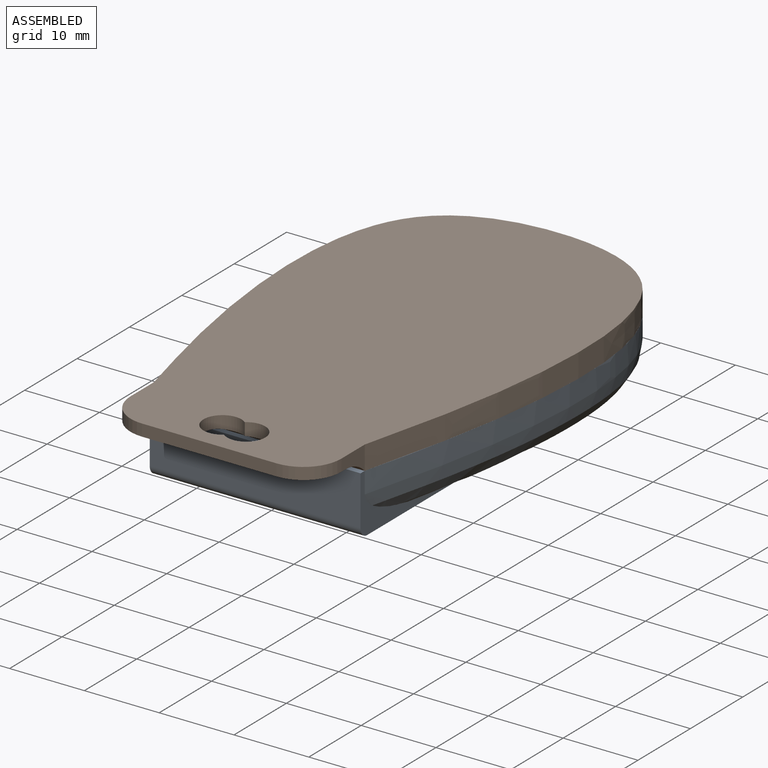
[diagram: assembled view]
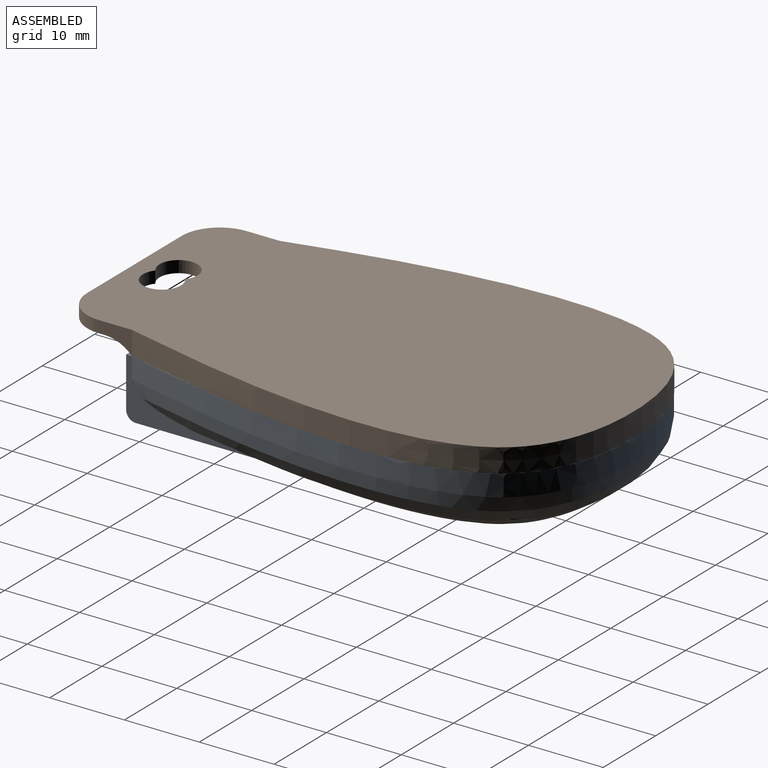
[diagram: assembled view, second angle]
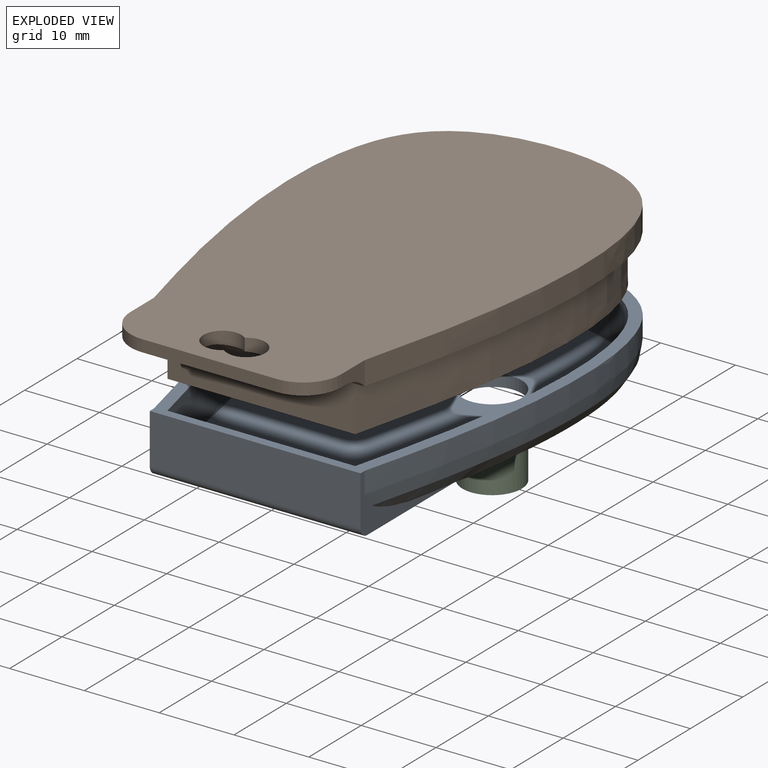
[diagram: exploded view]
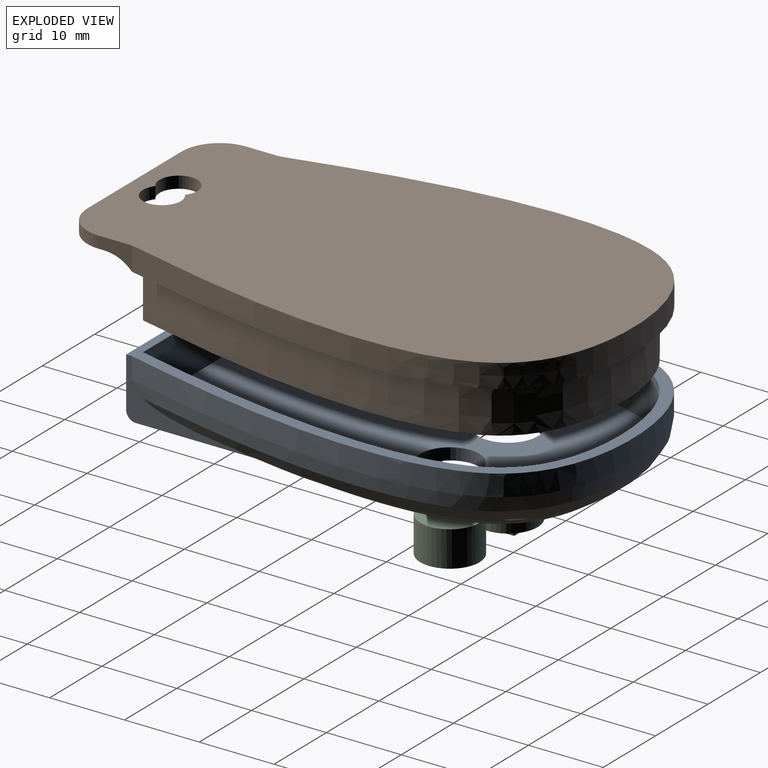
[diagram: exploded view, second angle]
ASSEMBLY  parts=3 mates=2
PART A: 13 faces, bbox 44.7x63.3x12.3 mm
  f0: plane 55.18x35.98mm, normal (0,0,1), area 1633.9mm2, adj f1,f2,f5,f6
  f1: cylinder r=3.97mm len=7.94mm, axis (0,0,-1), area 39.6mm2, adj f0,f4
  f2: cylinder r=3.97mm len=7.94mm, axis (0,0,-1), area 39.6mm2, adj f0,f4
  f3: extruded ~57.15x39.06mm, area 397.6mm2, adj f7,f8,f9,f11
  f4: plane 51.6x28.98mm, normal (0,0,-1), area 1300.9mm2, adj f1,f2,f8,f9,f11,f12
  f5: plane 25.1x6.35mm, normal (0,1,0), area 159.4mm2, adj f0,f6,f7
  f6: extruded ~55.18x35.89mm, area 846.6mm2, adj f0,f5,f7
  f7: plane 58.58x40.35mm, normal (0,0,1), area 249mm2, adj f3,f5,f6,f8,f9,f10
  f8: plane 31.87x12.29mm, normal (1,0,0), area 29.8mm2, adj f3,f4,f7,f10,f11,f12
  f9: plane 31.59x12.23mm, normal (-1,0,0), area 29.8mm2, adj f3,f4,f7,f10,f11,f12
  f10: plane 28.18x6.67mm, normal (0,-1,0), area 187.9mm2, adj f7,f8,f9,f12
  f11: bspline ~58.33x39.14mm, area 848.8mm2, adj f3,f4,f8,f9
  f12: cylinder r=1.27mm len=28.18mm, axis (1,0,0), area 56.2mm2, adj f4,f8,f9,f10
PART B: 22 faces, bbox 40.3x67.3x9.5 mm
  f0: plane 57.79x40.35mm, normal (0,0,1), area 226.7mm2, adj f2,f11,f12,f13
  f1: plane 67.31x40.35mm, normal (0,0,-1), area 2181.6mm2, adj f2,f3,f4,f5,f6,f7,f9,f10
  f2: extruded ~57.15x39.06mm, area 441.8mm2, adj f0,f1,f3,f7
  f3: plane 4.45x3.18mm, normal (-1,0,0), area 8.9mm2, adj f1,f2,f8,f9,f11
  f4: plane 18.02x1.59mm, normal (0,-1,0), area 28.6mm2, adj f1,f8,f9,f10
  f5: cylinder r=2.54mm len=5.08mm, axis (0,0,-1), area 18.7mm2, adj f1,f6,f8,f11
  f6: cylinder r=2.54mm len=5.08mm, axis (0,0,-1), area 18.7mm2, adj f1,f5,f8,f11
  f7: plane 4.45x3.18mm, normal (1,0,0), area 8.9mm2, adj f1,f2,f8,f10,f11
  f8: plane 28.18x5.84mm, normal (0,0,1), area 127mm2, adj f3,f4,f5,f6,f7,f9,f10,f11
  f9: cylinder r=5.08mm len=5.08mm, axis (0,0,-1), area 12.7mm2, adj f1,f3,f4,f8
  f10: cylinder r=5.08mm len=5.08mm, axis (0,0,-1), area 12.7mm2, adj f1,f4,f7,f8
  f11: cylinder r=5.08mm len=28.18mm, axis (-1,0,0), area 107.3mm2, adj f0,f3,f5,f6,f7,f8
  f12: extruded ~55.18x35.89mm, area 846.6mm2, adj f0,f13,f14
  f13: plane 25.1x6.35mm, normal (0,-1,0), area 159.4mm2, adj f0,f12,f14
  f14: plane 55.18x35.98mm, normal (0,0,1), area 370mm2, adj f12,f13,f16,f17,f18,f19,f20,f21
  f15: plane 47.63x31.83mm, normal (0,0,1), area 1362.9mm2, adj f16,f17,f18,f19,f20,f21
  f16: plane 23.81x7.94mm, normal (-0.99,-0.13,0), area 190.7mm2, adj f14,f15,f17,f21
  f17: plane 25.4x7.94mm, normal (0,-1,0), area 201.6mm2, adj f14,f15,f16,f18
  f18: plane 23.19x7.94mm, normal (0.99,-0.14,0), area 185.9mm2, adj f14,f15,f17,f19
  f19: plane 24.44x7.94mm, normal (0.99,0.13,0), area 195.7mm2, adj f14,f15,f18,f20
  f20: plane 25.4x7.94mm, normal (0,1,0), area 201.6mm2, adj f14,f15,f19,f21
  f21: plane 23.81x7.94mm, normal (-0.99,0.13,0), area 190.7mm2, adj f14,f15,f16,f20
PART C: 25 faces, bbox 19.1x7.9x5.6 mm
  f0: plane 7.94x7.94mm, normal (0,0,1), area 37.2mm2, adj f7,f8,f9,f10,f11,f12,f13,f14
  f1: plane 3.84x1.59mm, normal (0,-1,0), area 6.1mm2, adj f3,f4,f5,f7
  f2: plane 3.84x1.59mm, normal (0,1,0), area 6.1mm2, adj f3,f4,f5,f7
  f3: plane 3.84x3.18mm, normal (0,0,1), area 10.8mm2, adj f1,f2,f5,f7
  f4: plane 19.05x7.94mm, normal (0,0,-1), area 109.7mm2, adj f1,f2,f5,f7
  f5: cylinder r=3.97mm len=7.94mm, axis (0,0,-1), area 113.6mm2, adj f1,f2,f3,f4,f6
  f6: plane 7.94x7.94mm, normal (0,0,1), area 49.5mm2, adj f5
  f7: cylinder r=3.97mm len=7.94mm, axis (0,0,-1), area 113.6mm2, adj f0,f1,f2,f3,f4
  f8: cylinder r=0.25mm len=0.79mm, axis (0,0,-1), area 0.3mm2, adj f0,f9,f23,f24
  f9: plane 0.79x0.63mm, normal (0,1,0), area 0.5mm2, adj f0,f8,f10,f24
  f10: cylinder r=0.25mm len=0.79mm, axis (0,0,-1), area 0.3mm2, adj f0,f9,f11,f24
  f11: plane 2.68x0.79mm, normal (1,0,0), area 2.1mm2, adj f0,f10,f12,f24
  f12: cylinder r=0.25mm len=0.79mm, axis (0,0,-1), area 0.3mm2, adj f0,f11,f13,f24
  f13: plane 0.79x0.79mm, normal (0,1,0), area 0.6mm2, adj f0,f12,f14,f24
  f14: cylinder r=0.25mm len=0.79mm, axis (0,0,-1), area 0.3mm2, adj f0,f13,f15,f24
  f15: plane 3.83x0.79mm, normal (-1,0,0), area 3mm2, adj f0,f14,f16,f24
  f16: cylinder r=0.25mm len=0.79mm, axis (0,0,-1), area 0.3mm2, adj f0,f15,f17,f24
  f17: plane 3.16x0.79mm, normal (0,-1,0), area 2.5mm2, adj f0,f16,f18,f24
  f18: cylinder r=0.25mm len=0.79mm, axis (0,0,-1), area 0.3mm2, adj f0,f17,f19,f24
  f19: plane 3.85x0.79mm, normal (1,0,0), area 3.1mm2, adj f0,f18,f20,f24
  f20: cylinder r=0.25mm len=0.79mm, axis (0,0,-1), area 0.3mm2, adj f0,f19,f21,f24
  f21: plane 0.79x0.73mm, normal (0,1,0), area 0.6mm2, adj f0,f20,f22,f24
  f22: cylinder r=0.25mm len=0.79mm, axis (0,0,-1), area 0.3mm2, adj f0,f21,f23,f24
  f23: plane 2.7x0.79mm, normal (-1,0,0), area 2.1mm2, adj f0,f8,f22,f24
  f24: plane 4.36x3.67mm, normal (0,0,1), area 12.2mm2, adj f8,f9,f10,f11,f12,f13,f14,f15
PLACE A t=(-2.49,2.27,-10.76)mm
PLACE B rot(axis=(0,1,0),180deg) t=(52.13,1.95,0.35)mm
PLACE C rot(axis=(0,1,0),180deg) t=(163.13,2.25,-6)mm
MATE cylindrical C.f7 <-> A.f2  axis (0,0,1) through (46.57,36.87,-10.76)mm
MATE planar B.f0 <-> A.f7  axis (0,0,-1) through (52.13,57.51,-2.82)mm
